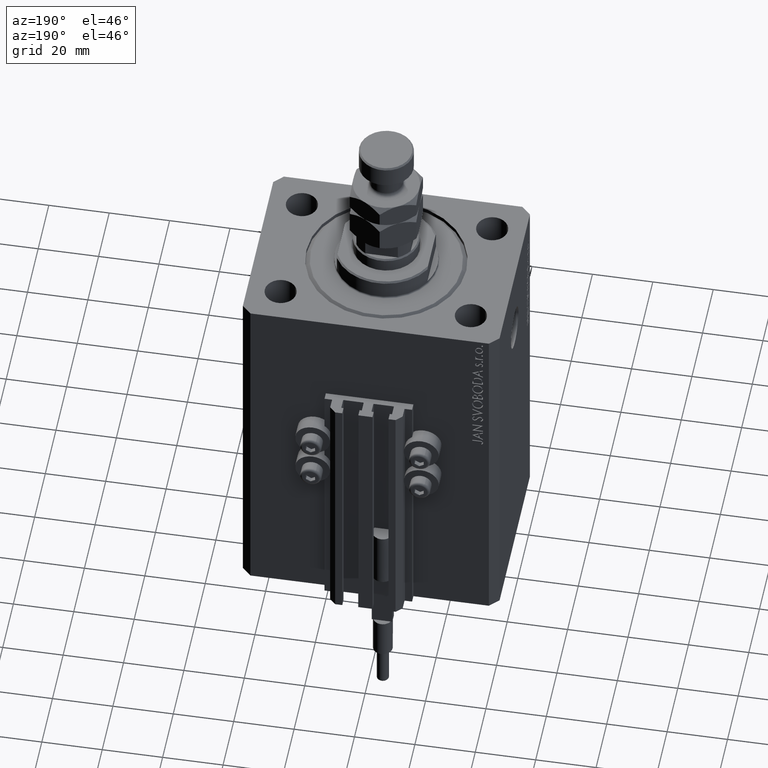
[diagram: clean part render]
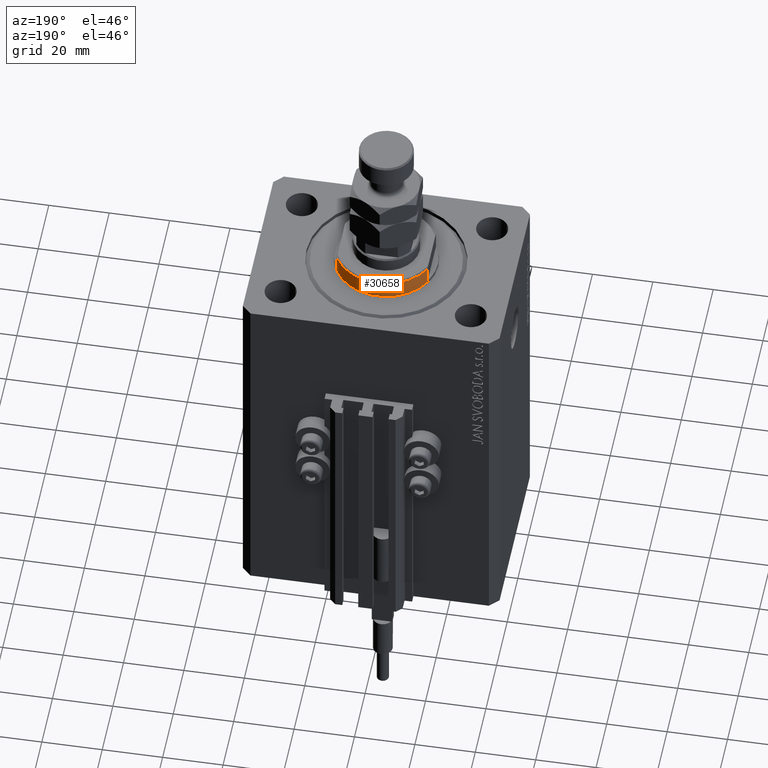
[diagram: same view with one face highlighted and labeled with its STEP entity id]
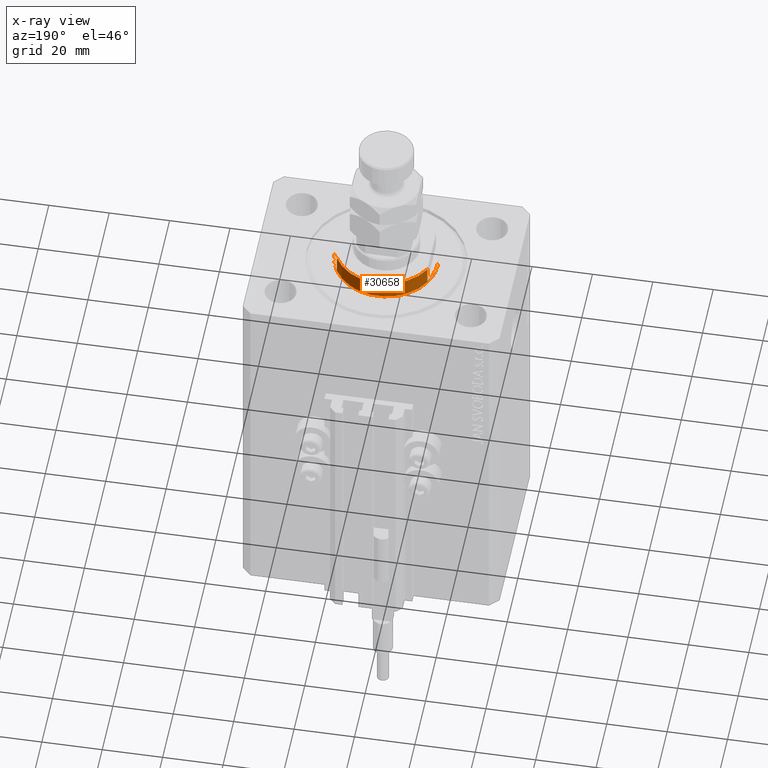
[diagram: x-ray of the same camera — body ghosted, the highlighted face saturated]
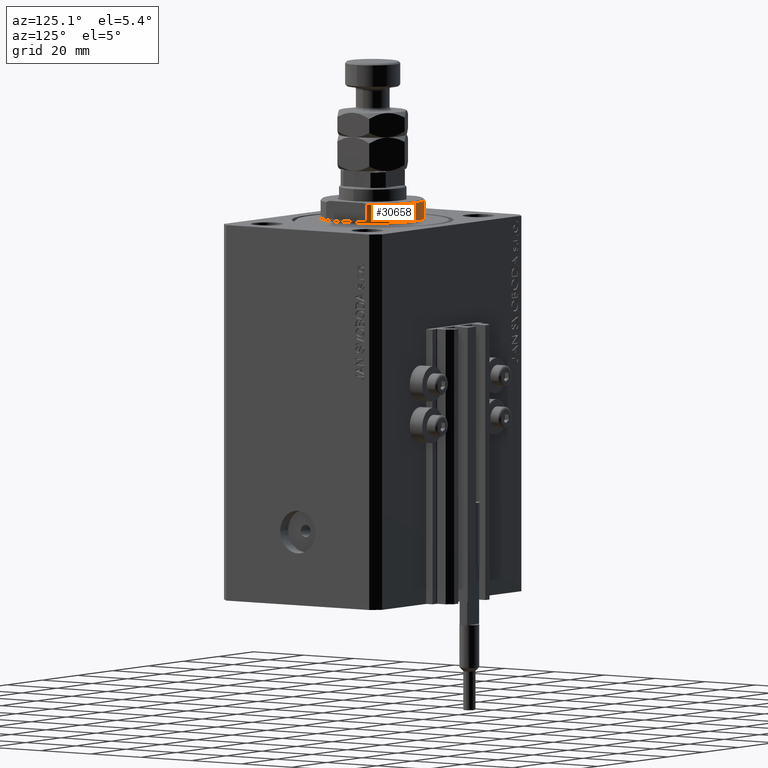
[diagram: same view with one face highlighted and labeled with its STEP entity id]
A machine part, auxiliary view. The second image highlights one B-rep face of the part: STEP entity #30658.
The next image is the same camera in x-ray: the body ghosted, the highlighted face saturated — about 0% of this face is hidden behind the body in this view.
A second angle (auxiliary view) of the same face is appended — the face is thin or edge-on in the first view.
In plain terms, the highlighted cylindrical surface (partial cylindrical patch) has radius 17 mm, axis along (0, 0, -1).
Its self-contained STEP definition (entity closure, byte-faithful):
#5 = EDGE_CURVE ( 'NONE', #28829, #21171, #29346, .T. ) ;
#1996 = CIRCLE ( 'NONE', #4443, 17.00000000000000000 ) ;
#2997 = VERTEX_POINT ( 'NONE', #21210 ) ;
#4443 = AXIS2_PLACEMENT_3D ( 'NONE', #42290, #25933, #41552 ) ;
#6512 = LINE ( 'NONE', #45274, #28532 ) ;
#7532 = CARTESIAN_POINT ( 'NONE',  ( 15.00000000000000000, 8.000000000000001776, -6.500000000000000888 ) ) ;
#8783 = ORIENTED_EDGE ( 'NONE', *, *, #5, .F. ) ;
#8880 = AXIS2_PLACEMENT_3D ( 'NONE', #33493, #21169, #44091 ) ;
#9589 = EDGE_CURVE ( 'NONE', #31770, #2997, #1996, .T. ) ;
#10196 = LINE ( 'NONE', #38146, #16313 ) ;
#10659 = DIRECTION ( 'NONE',  ( -0.000000000000000000, -0.000000000000000000, 1.000000000000000000 ) ) ;
#10721 = DIRECTION ( 'NONE',  ( 0.000000000000000000, 0.000000000000000000, -1.000000000000000000 ) ) ;
#11109 = EDGE_CURVE ( 'NONE', #39343, #42162, #43871, .T. ) ;
#13245 = VERTEX_POINT ( 'NONE', #7532 ) ;
#13637 = EDGE_CURVE ( 'NONE', #42162, #2997, #6512, .T. ) ;
#13923 = CARTESIAN_POINT ( 'NONE',  ( -17.00000000000000000, 2.081899558550500280E-15, -0.4999999999999995559 ) ) ;
#14331 = CARTESIAN_POINT ( 'NONE',  ( -14.99999999999999645, 8.000000000000003553, -1.000000000000000000 ) ) ;
#16144 = CIRCLE ( 'NONE', #8880, 17.00000000000000000 ) ;
#16313 = VECTOR ( 'NONE', #41440, 1000.000000000000000 ) ;
#17694 = EDGE_CURVE ( 'NONE', #28829, #31770, #27612, .T. ) ;
#17707 = FACE_OUTER_BOUND ( 'NONE', #26310, .T. ) ;
#17754 = AXIS2_PLACEMENT_3D ( 'NONE', #33083, #43730, #25755 ) ;
#19742 = AXIS2_PLACEMENT_3D ( 'NONE', #38434, #10721, #37688 ) ;
#20392 = ORIENTED_EDGE ( 'NONE', *, *, #9589, .T. ) ;
#20943 = VECTOR ( 'NONE', #10659, 1000.000000000000000 ) ;
#21169 = DIRECTION ( 'NONE',  ( 0.000000000000000000, 0.000000000000000000, 1.000000000000000000 ) ) ;
#21171 = VERTEX_POINT ( 'NONE', #14331 ) ;
#21210 = CARTESIAN_POINT ( 'NONE',  ( 17.00000000000000000, 0.000000000000000000, -0.4999999999999995559 ) ) ;
#21448 = VECTOR ( 'NONE', #42984, 1000.000000000000000 ) ;
#21763 = LINE ( 'NONE', #41184, #20943 ) ;
#22861 = DIRECTION ( 'NONE',  ( -1.000000000000000000, 0.000000000000000000, 0.000000000000000000 ) ) ;
#25755 = DIRECTION ( 'NONE',  ( 1.000000000000000000, 0.000000000000000000, 0.000000000000000000 ) ) ;
#25933 = DIRECTION ( 'NONE',  ( -0.000000000000000000, -0.000000000000000000, -1.000000000000000000 ) ) ;
#26310 = EDGE_LOOP ( 'NONE', ( #8783, #42711, #20392, #39199, #43143, #43333, #27597, #40694 ) ) ;
#27597 = ORIENTED_EDGE ( 'NONE', *, *, #29884, .T. ) ;
#27612 = LINE ( 'NONE', #39223, #21448 ) ;
#27688 = VERTEX_POINT ( 'NONE', #43067 ) ;
#27735 = AXIS2_PLACEMENT_3D ( 'NONE', #48841, #37750, #22861 ) ;
#28142 = CARTESIAN_POINT ( 'NONE',  ( -17.00000000000000000, 2.081899558550500280E-15, -1.000000000000000000 ) ) ;
#28532 = VECTOR ( 'NONE', #38208, 1000.000000000000000 ) ;
#28829 = VERTEX_POINT ( 'NONE', #28142 ) ;
#29346 = CIRCLE ( 'NONE', #27735, 17.00000000000000000 ) ;
#29884 = EDGE_CURVE ( 'NONE', #13245, #27688, #16144, .T. ) ;
#30658 = ADVANCED_FACE ( 'NONE', ( #17707 ), #33816, .T. ) ;
#31770 = VERTEX_POINT ( 'NONE', #13923 ) ;
#32013 = CARTESIAN_POINT ( 'NONE',  ( 17.00000000000000000, 0.000000000000000000, -1.000000000000000000 ) ) ;
#33083 = CARTESIAN_POINT ( 'NONE',  ( 0.000000000000000000, 0.000000000000000000, -7.000000000000000000 ) ) ;
#33493 = CARTESIAN_POINT ( 'NONE',  ( 0.000000000000000000, 0.000000000000000000, -6.500000000000000000 ) ) ;
#33816 = CYLINDRICAL_SURFACE ( 'NONE', #17754, 17.00000000000000000 ) ;
#35320 = EDGE_CURVE ( 'NONE', #27688, #21171, #10196, .T. ) ;
#37688 = DIRECTION ( 'NONE',  ( -1.000000000000000000, 0.000000000000000000, 0.000000000000000000 ) ) ;
#37750 = DIRECTION ( 'NONE',  ( 0.000000000000000000, 0.000000000000000000, -1.000000000000000000 ) ) ;
#38146 = CARTESIAN_POINT ( 'NONE',  ( -15.00000000000000000, 8.000000000000001776, -7.000000000000000000 ) ) ;
#38208 = DIRECTION ( 'NONE',  ( -0.000000000000000000, -0.000000000000000000, 1.000000000000000000 ) ) ;
#38232 = CARTESIAN_POINT ( 'NONE',  ( 14.99999999999999645, 8.000000000000003553, -1.000000000000000000 ) ) ;
#38434 = CARTESIAN_POINT ( 'NONE',  ( 0.000000000000000000, 0.000000000000000000, -1.000000000000000000 ) ) ;
#39199 = ORIENTED_EDGE ( 'NONE', *, *, #13637, .F. ) ;
#39223 = CARTESIAN_POINT ( 'NONE',  ( -17.00000000000000000, 2.081899558550500280E-15, -7.000000000000000000 ) ) ;
#39343 = VERTEX_POINT ( 'NONE', #38232 ) ;
#40694 = ORIENTED_EDGE ( 'NONE', *, *, #35320, .T. ) ;
#41184 = CARTESIAN_POINT ( 'NONE',  ( 15.00000000000000000, 8.000000000000001776, -7.000000000000000000 ) ) ;
#41440 = DIRECTION ( 'NONE',  ( -0.000000000000000000, -0.000000000000000000, 1.000000000000000000 ) ) ;
#41552 = DIRECTION ( 'NONE',  ( 1.000000000000000000, 0.000000000000000000, 0.000000000000000000 ) ) ;
#42162 = VERTEX_POINT ( 'NONE', #32013 ) ;
#42290 = CARTESIAN_POINT ( 'NONE',  ( 0.000000000000000000, 0.000000000000000000, -0.4999999999999995559 ) ) ;
#42711 = ORIENTED_EDGE ( 'NONE', *, *, #17694, .T. ) ;
#42984 = DIRECTION ( 'NONE',  ( -0.000000000000000000, -0.000000000000000000, 1.000000000000000000 ) ) ;
#43067 = CARTESIAN_POINT ( 'NONE',  ( -15.00000000000000000, 8.000000000000001776, -6.500000000000000888 ) ) ;
#43143 = ORIENTED_EDGE ( 'NONE', *, *, #11109, .F. ) ;
#43333 = ORIENTED_EDGE ( 'NONE', *, *, #49273, .F. ) ;
#43730 = DIRECTION ( 'NONE',  ( -0.000000000000000000, -0.000000000000000000, 1.000000000000000000 ) ) ;
#43871 = CIRCLE ( 'NONE', #19742, 17.00000000000000000 ) ;
#44091 = DIRECTION ( 'NONE',  ( -1.000000000000000000, 0.000000000000000000, 0.000000000000000000 ) ) ;
#45274 = CARTESIAN_POINT ( 'NONE',  ( 17.00000000000000000, 0.000000000000000000, -7.000000000000000000 ) ) ;
#48841 = CARTESIAN_POINT ( 'NONE',  ( 0.000000000000000000, 0.000000000000000000, -1.000000000000000000 ) ) ;
#49273 = EDGE_CURVE ( 'NONE', #13245, #39343, #21763, .T. ) ;